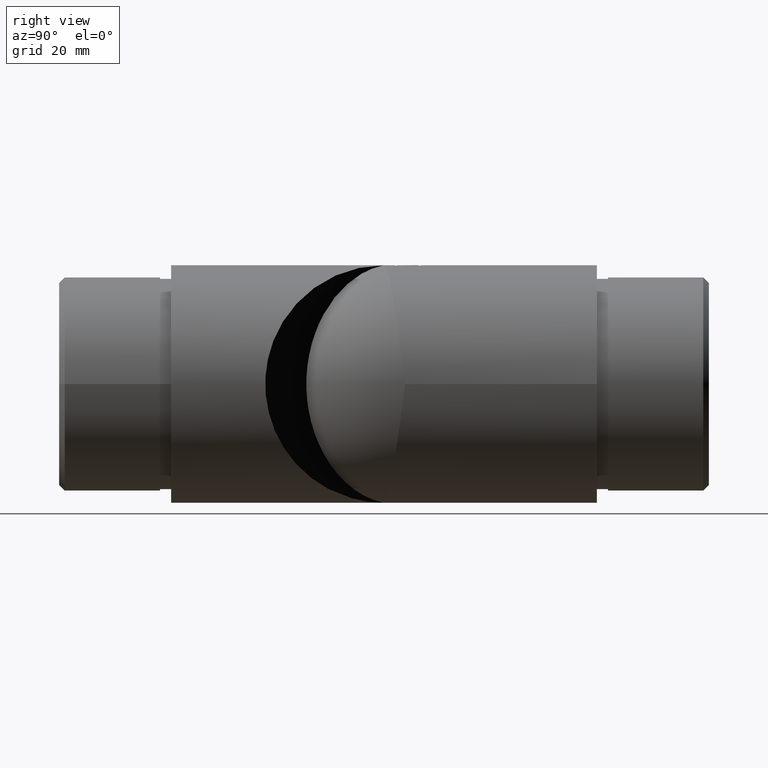
[diagram: clean part render]
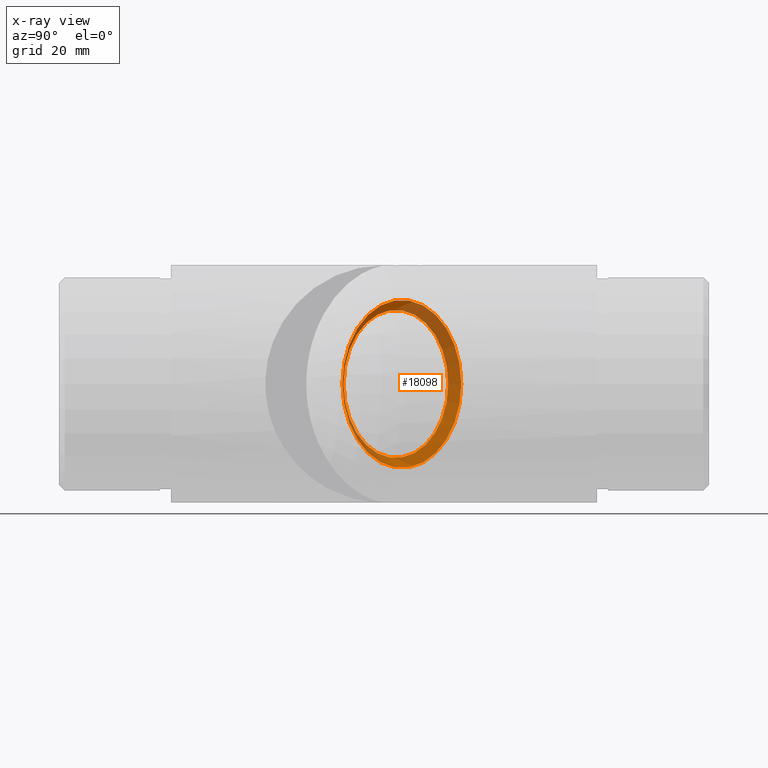
[diagram: x-ray — body ghosted, one internal face saturated and labeled with its STEP entity id]
A machine part, right view, then the same camera in x-ray: the body is ghosted and one INTERNAL B-rep face — a face not visible from any outside direction — is saturated and labeled: STEP entity #18098.
In plain terms, the highlighted conical surface has half-angle 50.116 deg.
Its self-contained STEP definition (entity closure, byte-faithful):
#953 = VERTEX_POINT ( 'NONE', #10681 ) ;
#1745 = CARTESIAN_POINT ( 'NONE',  ( 3.181980515339467800, 41.18198051533953900, 0.0000000000000000000 ) ) ;
#2136 = CARTESIAN_POINT ( 'NONE',  ( 11.45866538912795500, 30.78397529799131100, 0.0000000000000000000 ) ) ;
#2426 = ORIENTED_EDGE ( 'NONE', *, *, #14716, .T. ) ;
#2818 = EDGE_LOOP ( 'NONE', ( #16521 ) ) ;
#3133 = DIRECTION ( 'NONE',  ( -0.7071067811865450200, 0.7071067811865500200, 0.0000000000000000000 ) ) ;
#3207 = DIRECTION ( 'NONE',  ( 0.7071067811865450200, -0.7071067811865500200, 0.0000000000000000000 ) ) ;
#6182 = CARTESIAN_POINT ( 'NONE',  ( 2.121320343559628200, 40.12132034355970200, 0.0000000000000000000 ) ) ;
#6219 = VERTEX_POINT ( 'NONE', #2136 ) ;
#7540 = AXIS2_PLACEMENT_3D ( 'NONE', #6182, #10312, #8979 ) ;
#8735 = DIRECTION ( 'NONE',  ( 0.7071067811865500200, 0.7071067811865451300, 0.0000000000000000000 ) ) ;
#8979 = DIRECTION ( 'NONE',  ( 0.7071067811865450200, -0.7071067811865500200, 0.0000000000000000000 ) ) ;
#10312 = DIRECTION ( 'NONE',  ( -0.7071067811865500200, -0.7071067811865451300, -0.0000000000000000000 ) ) ;
#10681 = CARTESIAN_POINT ( 'NONE',  ( 13.78858223313764600, 30.57537879754129100, 0.0000000000000000000 ) ) ;
#11743 = CARTESIAN_POINT ( 'NONE',  ( 2.121320343559628200, 40.12132034355970200, 0.0000000000000000000 ) ) ;
#11876 = AXIS2_PLACEMENT_3D ( 'NONE', #11743, #8735, #3133 ) ;
#12049 = EDGE_CURVE ( 'NONE', #6219, #6219, #13756, .T. ) ;
#12163 = FACE_OUTER_BOUND ( 'NONE', #12876, .T. ) ;
#12462 = AXIS2_PLACEMENT_3D ( 'NONE', #1745, #14679, #3207 ) ;
#12876 = EDGE_LOOP ( 'NONE', ( #2426 ) ) ;
#13069 = CONICAL_SURFACE ( 'NONE', #11876, 13.20500000000000000, 0.8746896880149048800 ) ;
#13756 = CIRCLE ( 'NONE', #7540, 13.20500000000000000 ) ;
#14679 = DIRECTION ( 'NONE',  ( -0.7071067811865500200, -0.7071067811865451300, -0.0000000000000000000 ) ) ;
#14716 = EDGE_CURVE ( 'NONE', #953, #953, #16668, .T. ) ;
#16224 = FACE_BOUND ( 'NONE', #2818, .T. ) ;
#16521 = ORIENTED_EDGE ( 'NONE', *, *, #12049, .F. ) ;
#16668 = CIRCLE ( 'NONE', #12462, 15.00000000000000400 ) ;
#18098 = ADVANCED_FACE ( 'NONE', ( #12163, #16224 ), #13069, .T. ) ;